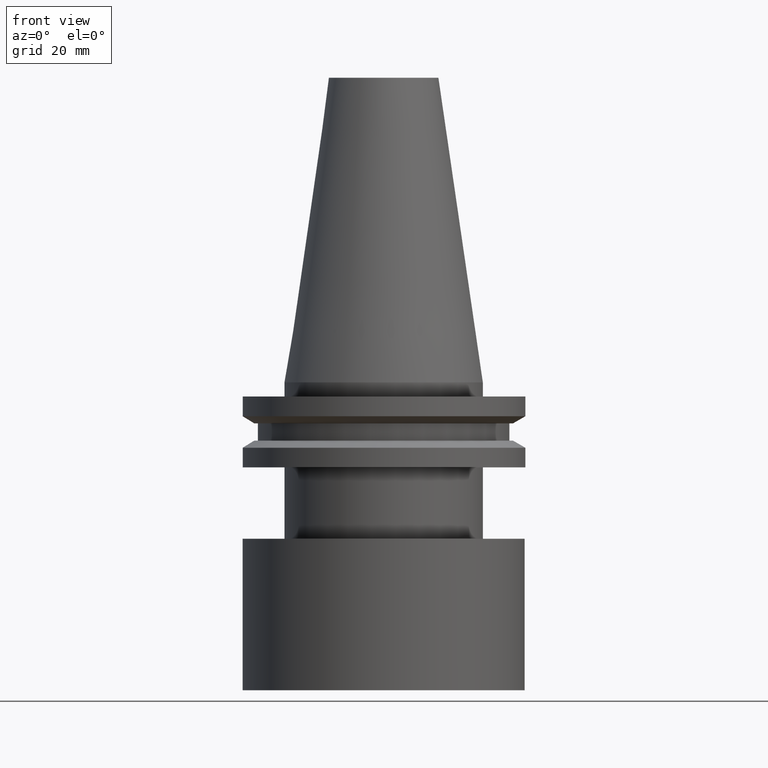
[diagram: clean part render]
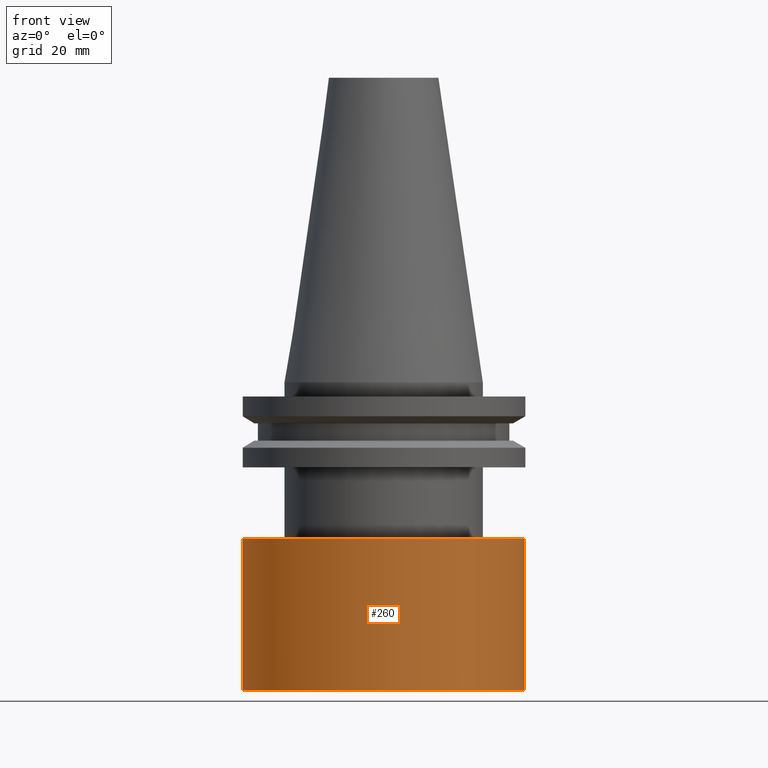
[diagram: same view with one face highlighted and labeled with its STEP entity id]
A machine part, front view. The second image highlights one B-rep face of the part: STEP entity #260.
In plain terms, the highlighted cylindrical surface (bore or boss wall) has radius 31.635 mm, axis along (-0, -0, -1).
Its self-contained STEP definition (entity closure, byte-faithful):
#3 = VERTEX_POINT ( 'NONE', #242 ) ;
#26 = CIRCLE ( 'NONE', #35, 31.63500000000000867 ) ;
#35 = AXIS2_PLACEMENT_3D ( 'NONE', #219, #95, #215 ) ;
#37 = CARTESIAN_POINT ( 'NONE',  ( 0.000000000000000000, 1.540743955509788682E-30, -35.04999999999999005 ) ) ;
#46 = FACE_OUTER_BOUND ( 'NONE', #280, .T. ) ;
#95 = DIRECTION ( 'NONE',  ( -0.000000000000000000, -2.669333229363891004E-16, -1.000000000000000000 ) ) ;
#106 = CARTESIAN_POINT ( 'NONE',  ( 0.000000000000000000, 31.63500000000000512, -69.00000000000000000 ) ) ;
#158 = DIRECTION ( 'NONE',  ( 0.000000000000000000, 1.000000000000000000, -4.386846153884764444E-16 ) ) ;
#199 = AXIS2_PLACEMENT_3D ( 'NONE', #37, #276, #271 ) ;
#215 = DIRECTION ( 'NONE',  ( 0.000000000000000000, 1.000000000000000000, -4.386846153884764444E-16 ) ) ;
#219 = CARTESIAN_POINT ( 'NONE',  ( 0.000000000000000000, -9.062386313690410430E-15, -68.99999999999998579 ) ) ;
#242 = CARTESIAN_POINT ( 'NONE',  ( 0.000000000000000000, 31.63500000000000512, -35.04999999999999716 ) ) ;
#248 = ORIENTED_EDGE ( 'NONE', *, *, #270, .T. ) ;
#249 = EDGE_LOOP ( 'NONE', ( #275 ) ) ;
#260 = ADVANCED_FACE ( 'NONE', ( #46, #367 ), #302, .T. ) ;
#270 = EDGE_CURVE ( 'NONE', #3, #3, #370, .T. ) ;
#271 = DIRECTION ( 'NONE',  ( 0.000000000000000000, 1.000000000000000000, -2.193423076942382468E-16 ) ) ;
#275 = ORIENTED_EDGE ( 'NONE', *, *, #283, .F. ) ;
#276 = DIRECTION ( 'NONE',  ( -0.000000000000000000, -2.669333229363891004E-16, -1.000000000000000000 ) ) ;
#280 = EDGE_LOOP ( 'NONE', ( #248 ) ) ;
#283 = EDGE_CURVE ( 'NONE', #383, #383, #26, .T. ) ;
#302 = CYLINDRICAL_SURFACE ( 'NONE', #341, 31.63500000000000867 ) ;
#341 = AXIS2_PLACEMENT_3D ( 'NONE', #366, #371, #158 ) ;
#366 = CARTESIAN_POINT ( 'NONE',  ( 0.000000000000000000, -9.062386313690412007E-15, -69.00000000000000000 ) ) ;
#367 = FACE_OUTER_BOUND ( 'NONE', #249, .T. ) ;
#370 = CIRCLE ( 'NONE', #199, 31.63500000000000512 ) ;
#371 = DIRECTION ( 'NONE',  ( -0.000000000000000000, -2.669333229363891004E-16, -1.000000000000000000 ) ) ;
#383 = VERTEX_POINT ( 'NONE', #106 ) ;